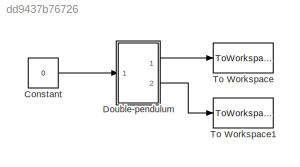
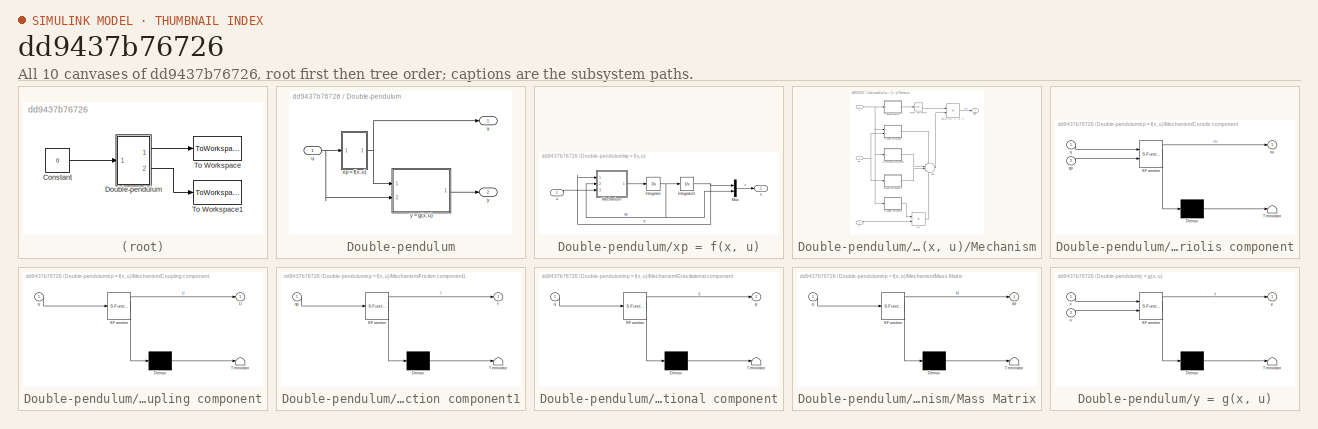
[diagram: thumbnail index - all 10 canvases of the model, root first then tree order]
MODEL slx_dd9437b76726
KIND model
CONFIG AbsTol = 1e-10
CONFIG FixedStep = 1e-2
CONFIG MaxStep = auto
CONFIG MinStep = auto
CONFIG RelTol = 1e-10
CONFIG SampleTimeConstraint = Unconstrained
CONFIG Solver = ode8
CONFIG SolverMode = Auto
CONFIG SolverName = ode8
CONFIG StartTime = 0.0
CONFIG StopTime = params.tf
BLOCK [Constant] Constant
  Value = 0
BLOCK [SubSystem] Double-pendulum
  Ports = [1, 2]
  RequestExecContextInheritance = off
BLOCK [Inport] Double-pendulum/u
  IconDisplay = Port number
BLOCK [Outport] Double-pendulum/x
  IconDisplay = Port number
BLOCK [SubSystem] Double-pendulum/xp = f(x, u)
  Ports = [1, 1]
  RequestExecContextInheritance = off
BLOCK [Integrator] Double-pendulum/xp = f(x, u)/Integrator
  InitialCondition = params.qp0
  Ports = [1, 1]
BLOCK [Integrator] Double-pendulum/xp = f(x, u)/Integrator1
  InitialCondition = params.q0
  Ports = [1, 1]
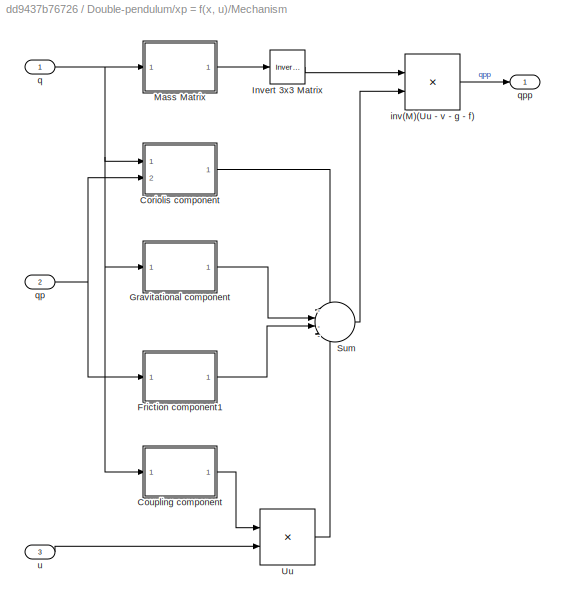
BLOCK [SubSystem] Double-pendulum/xp = f(x, u)/Mechanism
  Ports = [3, 1]
  RequestExecContextInheritance = off
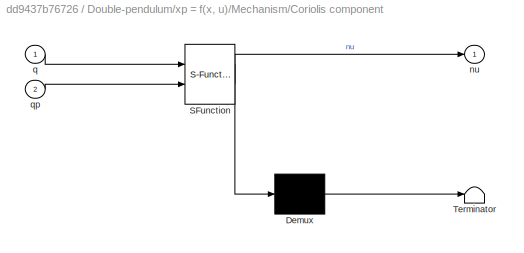
BLOCK [SubSystem] Double-pendulum/xp = f(x, u)/Mechanism/Coriolis component
  ErrorFcn = Stateflow.Translate.translate
  PermitHierarchicalResolution = ExplicitOnly
  Ports = [2, 1]
  RequestExecContextInheritance = off
  SFBlockType = MATLAB Function
  TreatAsAtomicUnit = on
BLOCK [Demux] Double-pendulum/xp = f(x, u)/Mechanism/Coriolis component/ Demux 
  Outputs = 1
  Ports = [1, 1]
BLOCK [S-Function] Double-pendulum/xp = f(x, u)/Mechanism/Coriolis component/ SFunction 
  EnableBusSupport = on
  FunctionName = sf_sfun
  Parameters = params
  PortCounts = [2 2]
  Ports = [2, 2]
  Tag = Stateflow S-Function pendulum_model 1
BLOCK [Terminator] Double-pendulum/xp = f(x, u)/Mechanism/Coriolis component/ Terminator 
BLOCK [Outport] Double-pendulum/xp = f(x, u)/Mechanism/Coriolis component/nu
  IconDisplay = Port number
BLOCK [Inport] Double-pendulum/xp = f(x, u)/Mechanism/Coriolis component/q
  IconDisplay = Port number
BLOCK [Inport] Double-pendulum/xp = f(x, u)/Mechanism/Coriolis component/qp
  IconDisplay = Port number
  Port = 2
BLOCK [SubSystem] Double-pendulum/xp = f(x, u)/Mechanism/Coupling component
  ErrorFcn = Stateflow.Translate.translate
  PermitHierarchicalResolution = ExplicitOnly
  Ports = [1, 1]
  RequestExecContextInheritance = off
  SFBlockType = MATLAB Function
  TreatAsAtomicUnit = on
BLOCK [Demux] Double-pendulum/xp = f(x, u)/Mechanism/Coupling component/ Demux 
  Outputs = 1
  Ports = [1, 1]
BLOCK [S-Function] Double-pendulum/xp = f(x, u)/Mechanism/Coupling component/ SFunction 
  EnableBusSupport = on
  FunctionName = sf_sfun
  PortCounts = [1 2]
  Ports = [1, 2]
  Tag = Stateflow S-Function pendulum_model 5
BLOCK [Terminator] Double-pendulum/xp = f(x, u)/Mechanism/Coupling component/ Terminator 
BLOCK [Outport] Double-pendulum/xp = f(x, u)/Mechanism/Coupling component/U
  IconDisplay = Port number
BLOCK [Inport] Double-pendulum/xp = f(x, u)/Mechanism/Coupling component/q
  IconDisplay = Port number
BLOCK [SubSystem] Double-pendulum/xp = f(x, u)/Mechanism/Friction component1
  ErrorFcn = Stateflow.Translate.translate
  PermitHierarchicalResolution = ExplicitOnly
  Ports = [1, 1]
  RequestExecContextInheritance = off
  SFBlockType = MATLAB Function
  TreatAsAtomicUnit = on
BLOCK [Demux] Double-pendulum/xp = f(x, u)/Mechanism/Friction component1/ Demux 
  Outputs = 1
  Ports = [1, 1]
BLOCK [S-Function] Double-pendulum/xp = f(x, u)/Mechanism/Friction component1/ SFunction 
  EnableBusSupport = on
  FunctionName = sf_sfun
  Parameters = params
  PortCounts = [1 2]
  Ports = [1, 2]
  Tag = Stateflow S-Function pendulum_model 4
BLOCK [Terminator] Double-pendulum/xp = f(x, u)/Mechanism/Friction component1/ Terminator 
BLOCK [Outport] Double-pendulum/xp = f(x, u)/Mechanism/Friction component1/f
  IconDisplay = Port number
BLOCK [Inport] Double-pendulum/xp = f(x, u)/Mechanism/Friction component1/qp
  IconDisplay = Port number
BLOCK [SubSystem] Double-pendulum/xp = f(x, u)/Mechanism/Gravitational component
  ErrorFcn = Stateflow.Translate.translate
  PermitHierarchicalResolution = ExplicitOnly
  Ports = [1, 1]
  RequestExecContextInheritance = off
  SFBlockType = MATLAB Function
  TreatAsAtomicUnit = on
BLOCK [Demux] Double-pendulum/xp = f(x, u)/Mechanism/Gravitational component/ Demux 
  Outputs = 1
  Ports = [1, 1]
BLOCK [S-Function] Double-pendulum/xp = f(x, u)/Mechanism/Gravitational component/ SFunction 
  EnableBusSupport = on
  FunctionName = sf_sfun
  Parameters = params
  PortCounts = [1 2]
  Ports = [1, 2]
  Tag = Stateflow S-Function pendulum_model 3
BLOCK [Terminator] Double-pendulum/xp = f(x, u)/Mechanism/Gravitational component/ Terminator 
BLOCK [Outport] Double-pendulum/xp = f(x, u)/Mechanism/Gravitational component/g
  IconDisplay = Port number
BLOCK [Inport] Double-pendulum/xp = f(x, u)/Mechanism/Gravitational component/q
  IconDisplay = Port number
BLOCK [Reference] Double-pendulum/xp = f(x, u)/Mechanism/Invert 3x3 Matrix  REF=aerolibutil/Invert 
3x3 Matrix
  Ports = [1, 1]
  SourceBlock = aerolibutil/Invert \n3x3 Matrix
  SourceType = Invert 3x3 Matrix
BLOCK [SubSystem] Double-pendulum/xp = f(x, u)/Mechanism/Mass Matrix
  ErrorFcn = Stateflow.Translate.translate
  PermitHierarchicalResolution = ExplicitOnly
  Ports = [1, 1]
  RequestExecContextInheritance = off
  SFBlockType = MATLAB Function
  TreatAsAtomicUnit = on
BLOCK [Demux] Double-pendulum/xp = f(x, u)/Mechanism/Mass Matrix/ Demux 
  Outputs = 1
  Ports = [1, 1]
BLOCK [S-Function] Double-pendulum/xp = f(x, u)/Mechanism/Mass Matrix/ SFunction 
  EnableBusSupport = on
  FunctionName = sf_sfun
  Parameters = params
  PortCounts = [1 2]
  Ports = [1, 2]
  Tag = Stateflow S-Function pendulum_model 2
BLOCK [Terminator] Double-pendulum/xp = f(x, u)/Mechanism/Mass Matrix/ Terminator 
BLOCK [Outport] Double-pendulum/xp = f(x, u)/Mechanism/Mass Matrix/M
  IconDisplay = Port number
BLOCK [Inport] Double-pendulum/xp = f(x, u)/Mechanism/Mass Matrix/q
  IconDisplay = Port number
BLOCK [Sum] Double-pendulum/xp = f(x, u)/Mechanism/Sum
  IconShape = round
  InputSameDT = off
  Inputs = -|-|-|+
  OutDataTypeStr = Inherit: Inherit via internal rule
  Ports = [4, 1]
  SaturateOnIntegerOverflow = off
BLOCK [Product] Double-pendulum/xp = f(x, u)/Mechanism/Uu
  InputSameDT = off
  OutDataTypeStr = Inherit: Inherit via internal rule
  Ports = [2, 1]
  RndMeth = Floor
  SaturateOnIntegerOverflow = off
BLOCK [Product] Double-pendulum/xp = f(x, u)/Mechanism/inv(M)(Uu - v - g - f)
  InputSameDT = off
  Multiplication = Matrix(*)
  OutDataTypeStr = Inherit: Inherit via internal rule
  Ports = [2, 1]
  RndMeth = Floor
  SaturateOnIntegerOverflow = off
BLOCK [Inport] Double-pendulum/xp = f(x, u)/Mechanism/q
  IconDisplay = Port number
BLOCK [Inport] Double-pendulum/xp = f(x, u)/Mechanism/qp
  IconDisplay = Port number
  Port = 2
BLOCK [Outport] Double-pendulum/xp = f(x, u)/Mechanism/qpp
  IconDisplay = Port number
BLOCK [Inport] Double-pendulum/xp = f(x, u)/Mechanism/u
  IconDisplay = Port number
  Port = 3
BLOCK [Mux] Double-pendulum/xp = f(x, u)/Mux
  DisplayOption = bar
  Inputs = 2
  Ports = [2, 1]
BLOCK [Inport] Double-pendulum/xp = f(x, u)/u
  IconDisplay = Port number
BLOCK [Outport] Double-pendulum/xp = f(x, u)/x
  IconDisplay = Port number
BLOCK [Outport] Double-pendulum/y
  IconDisplay = Port number
  Port = 2
BLOCK [SubSystem] Double-pendulum/y = g(x, u)
  ErrorFcn = Stateflow.Translate.translate
  PermitHierarchicalResolution = ExplicitOnly
  Ports = [2, 1]
  RequestExecContextInheritance = off
  SFBlockType = MATLAB Function
  TreatAsAtomicUnit = on
BLOCK [Demux] Double-pendulum/y = g(x, u)/ Demux 
  Outputs = 1
  Ports = [1, 1]
BLOCK [S-Function] Double-pendulum/y = g(x, u)/ SFunction 
  EnableBusSupport = on
  FunctionName = sf_sfun
  PortCounts = [2 2]
  Ports = [2, 2]
  Tag = Stateflow S-Function pendulum_model 6
BLOCK [Terminator] Double-pendulum/y = g(x, u)/ Terminator 
BLOCK [Inport] Double-pendulum/y = g(x, u)/u
  IconDisplay = Port number
  Port = 2
BLOCK [Inport] Double-pendulum/y = g(x, u)/x
  IconDisplay = Port number
BLOCK [Outport] Double-pendulum/y = g(x, u)/y
  IconDisplay = Port number
BLOCK [ToWorkspace] To Workspace
  FixptAsFi = on
  MaxDataPoints = inf
  Ports = [1]
  SampleTime = -1
  Save2DSignal = 3-D array (concatenate along third dimension)
  SaveFormat = Structure With Time
  VariableName = x
BLOCK [ToWorkspace] To Workspace1
  FixptAsFi = on
  MaxDataPoints = inf
  Ports = [1]
  SampleTime = -1
  Save2DSignal = 3-D array (concatenate along third dimension)
  SaveFormat = Structure With Time
  VariableName = y
LINE Constant:1 -> Double-pendulum:1
NET Double-pendulum/u:1 -> Double-pendulum/xp = f(x, u):1, Double-pendulum/y = g(x, u):2
NET Double-pendulum/xp = f(x, u)/Integrator1:1 -> Double-pendulum/xp = f(x, u)/Mechanism:1, Double-pendulum/xp = f(x, u)/Mux:1
NET Double-pendulum/xp = f(x, u)/Integrator:1 -> Double-pendulum/xp = f(x, u)/Integrator1:1, Double-pendulum/xp = f(x, u)/Mechanism:2, Double-pendulum/xp = f(x, u)/Mux:2
LINE Double-pendulum/xp = f(x, u)/Mechanism/Coriolis component:1 -> Double-pendulum/xp = f(x, u)/Mechanism/Sum:1
LINE Double-pendulum/xp = f(x, u)/Mechanism/Coupling component:1 -> Double-pendulum/xp = f(x, u)/Mechanism/Uu:1
LINE Double-pendulum/xp = f(x, u)/Mechanism/Friction component1:1 -> Double-pendulum/xp = f(x, u)/Mechanism/Sum:3
LINE Double-pendulum/xp = f(x, u)/Mechanism/Gravitational component:1 -> Double-pendulum/xp = f(x, u)/Mechanism/Sum:2
LINE Double-pendulum/xp = f(x, u)/Mechanism/Invert 3x3 Matrix:1 -> Double-pendulum/xp = f(x, u)/Mechanism/inv(M)(Uu - v - g - f):1
LINE Double-pendulum/xp = f(x, u)/Mechanism/Mass Matrix:1 -> Double-pendulum/xp = f(x, u)/Mechanism/Invert 3x3 Matrix:1
LINE Double-pendulum/xp = f(x, u)/Mechanism/Sum:1 -> Double-pendulum/xp = f(x, u)/Mechanism/inv(M)(Uu - v - g - f):2
LINE Double-pendulum/xp = f(x, u)/Mechanism/Uu:1 -> Double-pendulum/xp = f(x, u)/Mechanism/Sum:4
LINE Double-pendulum/xp = f(x, u)/Mechanism/inv(M)(Uu - v - g - f):1 -> Double-pendulum/xp = f(x, u)/Mechanism/qpp:1
NET Double-pendulum/xp = f(x, u)/Mechanism/q:1 -> Double-pendulum/xp = f(x, u)/Mechanism/Coriolis component:1, Double-pendulum/xp = f(x, u)/Mechanism/Coupling component:1, Double-pendulum/xp = f(x, u)/Mechanism/Gravitational component:1, Double-pendulum/xp = f(x, u)/Mechanism/Mass Matrix:1
NET Double-pendulum/xp = f(x, u)/Mechanism/qp:1 -> Double-pendulum/xp = f(x, u)/Mechanism/Coriolis component:2, Double-pendulum/xp = f(x, u)/Mechanism/Friction component1:1
LINE Double-pendulum/xp = f(x, u)/Mechanism/u:1 -> Double-pendulum/xp = f(x, u)/Mechanism/Uu:2
LINE Double-pendulum/xp = f(x, u)/Mechanism:1 -> Double-pendulum/xp = f(x, u)/Integrator:1
LINE Double-pendulum/xp = f(x, u)/Mux:1 -> Double-pendulum/xp = f(x, u)/x:1
LINE Double-pendulum/xp = f(x, u)/u:1 -> Double-pendulum/xp = f(x, u)/Mechanism:3
NET Double-pendulum/xp = f(x, u):1 -> Double-pendulum/x:1, Double-pendulum/y = g(x, u):1
LINE Double-pendulum/y = g(x, u):1 -> Double-pendulum/y:1
LINE Double-pendulum:1 -> To Workspace:1
LINE Double-pendulum:2 -> To Workspace1:1
note: NET lines group one-source signal fan-out (src -> all destinations, sorted); 1:1 wires keep LINE
CHART Double-pendulum/xp = f(x, u)/Mechanism/Coriolis component states=1 transitions=1
  STATE_LABEL 'eML_blk_kernel()'
  STATE_LABEL "SCRIPT:\nfunction nu = corvec(q, qp, params)\n    % Coriolis 'vector\n    nu = zeros(3, 1);\n    \n    % Coupled mass matrix\n    nu(1) = -params.m2*params.L2_cg*sin(q(2) + q(3))*(qp(2) + qp(3)^2 ...\n            -(params.m2*params.L1 + params.m1*params.L1_cg)*sin(q(2))*qp(3)^2);\n    nu(2) = -params.m2*qp(3)*(2*qp(2) + qp(3))*params.L2_cg*params.L1*sin(q(3));\n    nu(3) = params.m2*(qp(2)^2)*params.L2_cg*...<+24ch>"
CHART Double-pendulum/xp = f(x, u)/Mechanism/Mass Matrix states=1 transitions=1
  STATE_LABEL 'eML_blk_kernel()'
  STATE_LABEL 'SCRIPT:\nfunction M = mmatrix(q, params)\n    % Mass matrix\n    M = zeros(3, 3);\n    \n    % Coupled mass matrix\n    M(1,1) = params.m0 + params.m1 + params.m2;\n    \n    M(2,2) = params.m2*params.L1^2 + params.m1*params.L1_cg^2 +...\n             params.m2*params.L2_cg^2 + ...\n             params.I1 + params.I2 + 2*params.m2*params.L1*params.L2_cg*cos(q(3));\n    \n    M(3,3) = params.m2*params.L2_cg^2 ...<+400ch>'
CHART Double-pendulum/xp = f(x, u)/Mechanism/Gravitational component states=1 transitions=1
  STATE_LABEL 'eML_blk_kernel()'
  STATE_LABEL 'SCRIPT:\nfunction g = gvec(q, params)\n    % Gravitational component\n    g = zeros(3, 1);\n    \n    % Coupled mass matrix\n    g(1) = 0;\n    g(2) = params.m2*params.g*(params.L1*sin(q(2)) + ...\n           params.L2_cg*sin(q(2) + q(3))) + ...\n           params.m1*params.L1_cg*params.g*sin(q(2));\n    g(3) = params.m2*params.g*params.L2_cg*sin(q(2) + q(3));\nend'
CHART Double-pendulum/xp = f(x, u)/Mechanism/Friction component1 states=1 transitions=1
  STATE_LABEL 'eML_blk_kernel()'
  STATE_LABEL 'SCRIPT:\nfunction f = fvec(qp, params)\n    % Friction vector\n    f = zeros(3, 1);\n    \n    % Coupled mass matrix\n    f(1) = params.b0*qp(1);\n    f(2) = params.b1*qp(2);\n    f(3) = params.b2*qp(3);\nend'
CHART Double-pendulum/xp = f(x, u)/Mechanism/Coupling component states=1 transitions=1
  STATE_LABEL 'eML_blk_kernel()'
  STATE_LABEL 'SCRIPT:\nfunction U = Uvec(q)\n    U = [1; 0; 0];\nend'
CHART Double-pendulum/y = g(x, u) states=1 transitions=1
  STATE_LABEL 'eML_blk_kernel()'
  STATE_LABEL 'SCRIPT:\nfunction y = system_output(x, u)\n    y = [x(1); x(2); x(3)];\nend'
